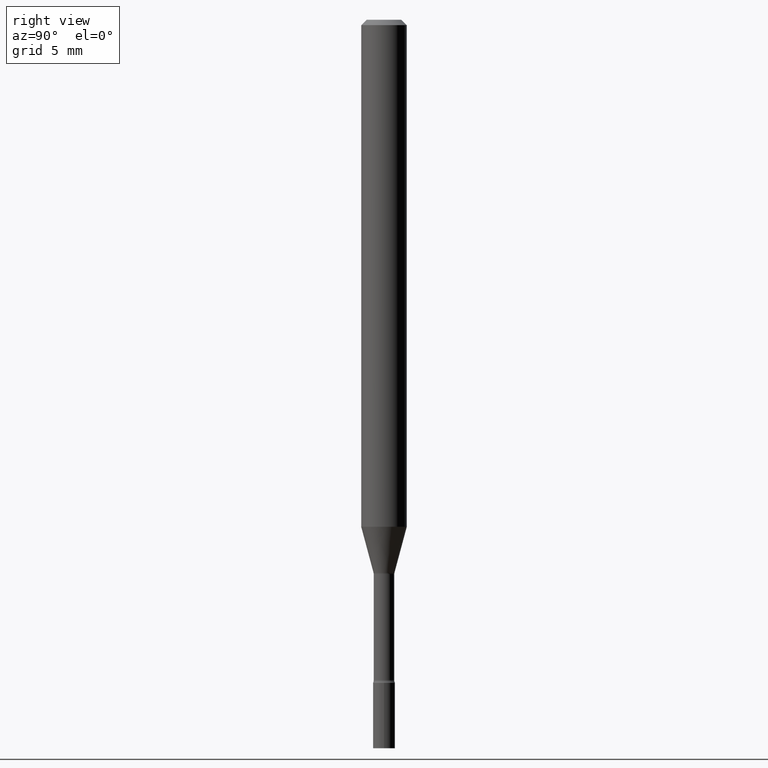
[diagram: clean part render]
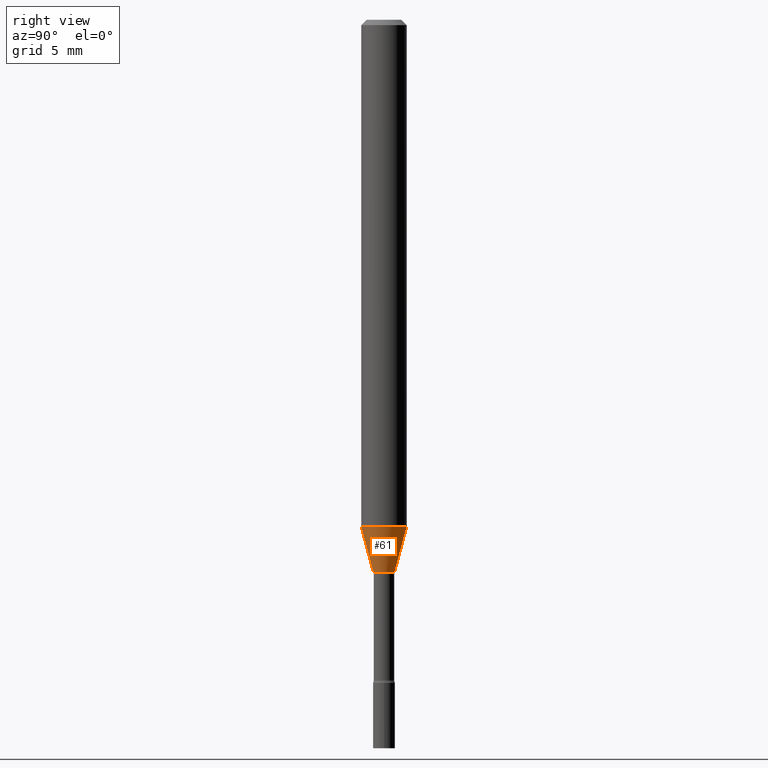
[diagram: same view with one face highlighted and labeled with its STEP entity id]
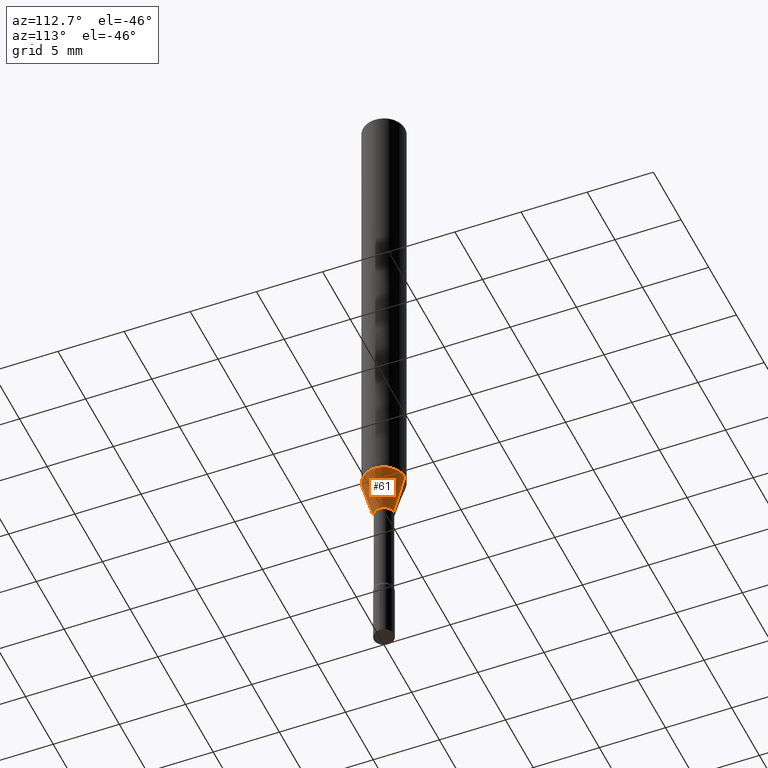
[diagram: same view with one face highlighted and labeled with its STEP entity id]
A machine part, right view. The second image highlights one B-rep face of the part: STEP entity #61.
A second angle (auxiliary view) of the same face is appended — the face is thin or edge-on in the first view.
In plain terms, the highlighted conical surface has half-angle 15 deg.
Its self-contained STEP definition (entity closure, byte-faithful):
#5 = AXIS2_PLACEMENT_3D ( 'NONE', #12, #133, #340 ) ;
#12 = CARTESIAN_POINT ( 'NONE',  ( 3.712317934641546488E-29, -5.300577698306894127E-15, -1.518092501787273063 ) ) ;
#19 = LINE ( 'NONE', #273, #35 ) ;
#35 = VECTOR ( 'NONE', #498, 39.37007874015748854 ) ;
#53 = VERTEX_POINT ( 'NONE', #140 ) ;
#61 = ADVANCED_FACE ( 'NONE', ( #214 ), #275, .T. ) ;
#68 = CARTESIAN_POINT ( 'NONE',  ( 3.240469674127907994E-16, 0.02871111260565867296, -1.518092501787273063 ) ) ;
#69 = CIRCLE ( 'NONE', #197, 0.02871111260566397427 ) ;
#78 = ORIENTED_EDGE ( 'NONE', *, *, #234, .F. ) ;
#109 = DIRECTION ( 'NONE',  ( -1.807323732225328562E-15, -0.2588190451025179639, 0.9659258262890690894 ) ) ;
#124 = EDGE_CURVE ( 'NONE', #172, #404, #19, .T. ) ;
#133 = DIRECTION ( 'NONE',  ( -2.445383222874086491E-29, 3.491603899015669090E-15, 1.000000000000000000 ) ) ;
#140 = CARTESIAN_POINT ( 'NONE',  ( -4.364351673553577484E-16, -0.06250000000000488498, -1.391990657300387513 ) ) ;
#155 = DIRECTION ( 'NONE',  ( -2.445383222874086491E-29, 3.491603899015669090E-15, 1.000000000000000000 ) ) ;
#172 = VERTEX_POINT ( 'NONE', #68 ) ;
#178 = EDGE_CURVE ( 'NONE', #187, #172, #69, .T. ) ;
#184 = CARTESIAN_POINT ( 'NONE',  ( -2.004886277601620918E-16, -0.02871111260566927559, -1.518092501787273063 ) ) ;
#187 = VERTEX_POINT ( 'NONE', #184 ) ;
#197 = AXIS2_PLACEMENT_3D ( 'NONE', #227, #155, #505 ) ;
#210 = VECTOR ( 'NONE', #109, 39.37007874015748854 ) ;
#214 = FACE_OUTER_BOUND ( 'NONE', #304, .T. ) ;
#227 = CARTESIAN_POINT ( 'NONE',  ( 3.712317934641546488E-29, -5.300577698306894127E-15, -1.518092501787273063 ) ) ;
#231 = DIRECTION ( 'NONE',  ( -6.982962677686265922E-15, -1.000000000000000000, 4.370956789862821150E-15 ) ) ;
#234 = EDGE_CURVE ( 'NONE', #187, #53, #314, .T. ) ;
#248 = EDGE_CURVE ( 'NONE', #53, #404, #378, .T. ) ;
#268 = CARTESIAN_POINT ( 'NONE',  ( 3.403950599759840032E-29, -4.860280006423417622E-15, -1.391990657300387735 ) ) ;
#273 = CARTESIAN_POINT ( 'NONE',  ( 2.040047249754848891E-16, 0.02871111260565867296, -1.518092501787273063 ) ) ;
#275 = CONICAL_SURFACE ( 'NONE', #5, 0.02871111260566397427, 0.2617993877991500740 ) ;
#295 = ORIENTED_EDGE ( 'NONE', *, *, #248, .F. ) ;
#304 = EDGE_LOOP ( 'NONE', ( #348, #520, #295, #78 ) ) ;
#314 = LINE ( 'NONE', #344, #210 ) ;
#315 = AXIS2_PLACEMENT_3D ( 'NONE', #268, #419, #231 ) ;
#340 = DIRECTION ( 'NONE',  ( -6.982962677686265922E-15, -1.000000000000000000, 0.000000000000000000 ) ) ;
#344 = CARTESIAN_POINT ( 'NONE',  ( -2.004886277601620918E-16, -0.02871111260566927559, -1.518092501787273063 ) ) ;
#348 = ORIENTED_EDGE ( 'NONE', *, *, #178, .T. ) ;
#378 = CIRCLE ( 'NONE', #315, 0.06250000000000000000 ) ;
#398 = CARTESIAN_POINT ( 'NONE',  ( 4.440892098500963400E-16, 0.06249999999999510808, -1.391990657300387957 ) ) ;
#404 = VERTEX_POINT ( 'NONE', #398 ) ;
#419 = DIRECTION ( 'NONE',  ( -2.445383222874086491E-29, 3.491603899015669090E-15, 1.000000000000000000 ) ) ;
#498 = DIRECTION ( 'NONE',  ( 1.839019923739598738E-15, 0.2588190451025247363, 0.9659258262890673130 ) ) ;
#505 = DIRECTION ( 'NONE',  ( -6.982962677686265922E-15, -1.000000000000000000, 0.000000000000000000 ) ) ;
#520 = ORIENTED_EDGE ( 'NONE', *, *, #124, .T. ) ;